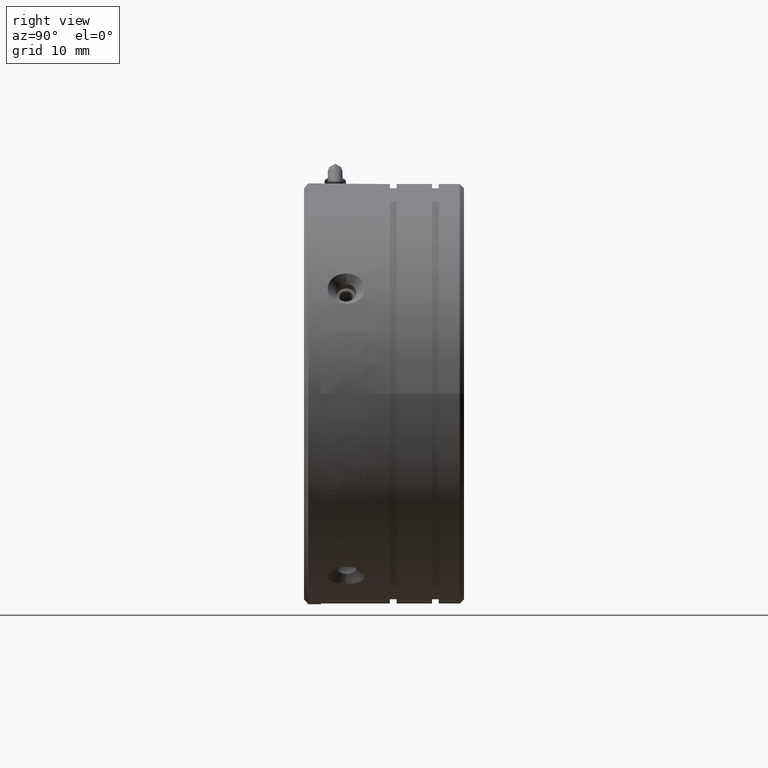
[diagram: clean part render]
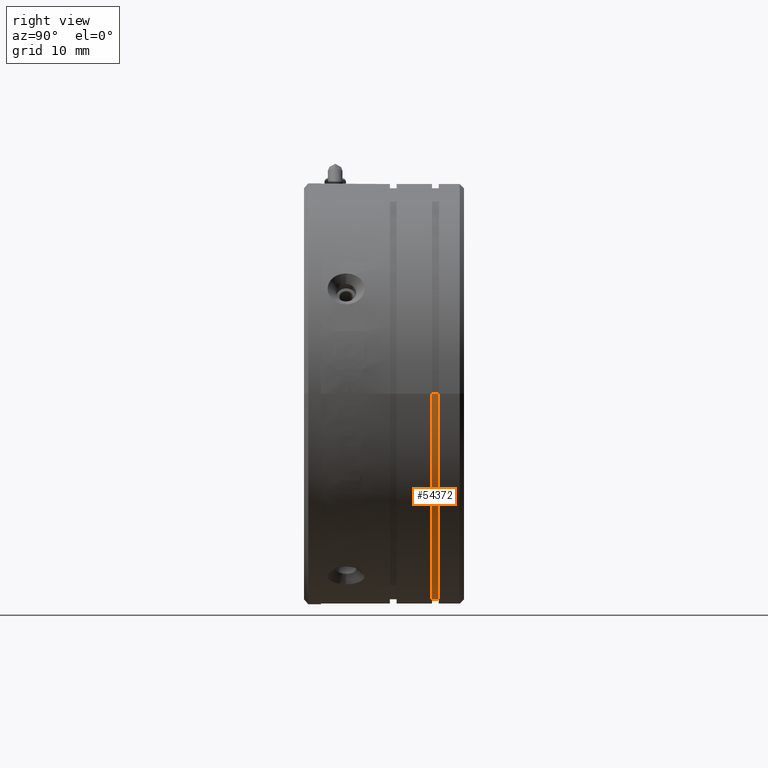
[diagram: same view with one face highlighted and labeled with its STEP entity id]
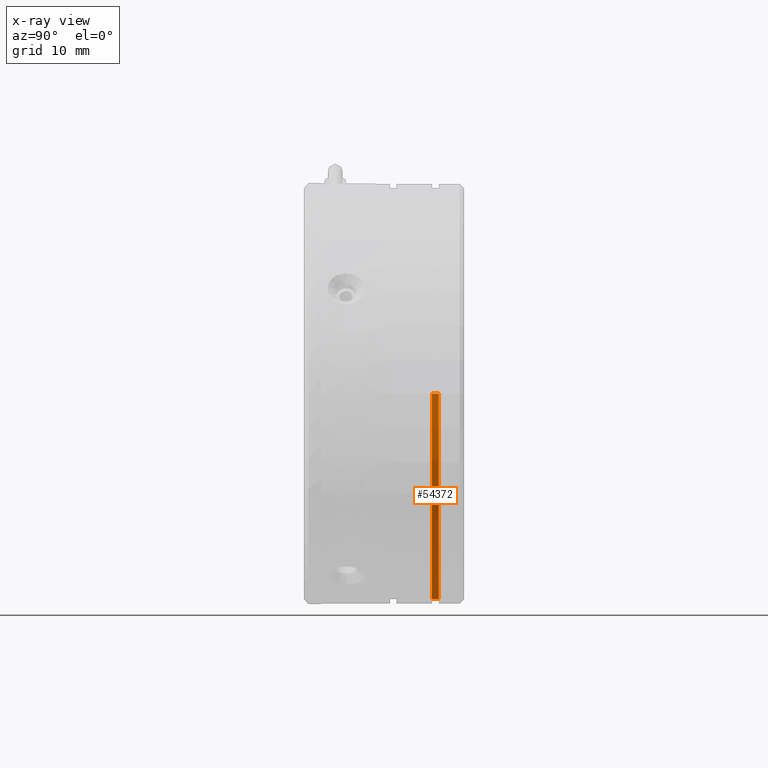
[diagram: x-ray of the same camera — body ghosted, the highlighted face saturated]
A machine part, right view. The second image highlights one B-rep face of the part: STEP entity #54372.
The next image is the same camera in x-ray: the body ghosted, the highlighted face saturated — about 0% of this face is hidden behind the body in this view.
In plain terms, the highlighted cylindrical surface (partial cylindrical patch) has radius 24.5 mm, axis along (0, 1, -0).
Its self-contained STEP definition (entity closure, byte-faithful):
#891 = VERTEX_POINT ( 'NONE', #60872 ) ;
#903 = DIRECTION ( 'NONE',  ( 0.0000000000000000000, 1.000000000000000000, -0.0000000000000000000 ) ) ;
#1219 = CARTESIAN_POINT ( 'NONE',  ( 20.47418136128692400, 15.36823414706071000, 3.361451086403000600E-015 ) ) ;
#2314 = EDGE_CURVE ( 'NONE', #36819, #891, #8760, .T. ) ;
#4302 = CARTESIAN_POINT ( 'NONE',  ( -4.025818638713078100, 16.16823414706071200, 3.557538378468061400E-016 ) ) ;
#6892 = ORIENTED_EDGE ( 'NONE', *, *, #42742, .F. ) ;
#8760 = CIRCLE ( 'NONE', #21732, 24.50000000000000000 ) ;
#9171 = DIRECTION ( 'NONE',  ( -1.000000000000000000, 0.0000000000000000000, -2.168404344971005700E-019 ) ) ;
#10589 = CARTESIAN_POINT ( 'NONE',  ( -4.025818638713078100, 15.96823414706070900, 3.557538378468061400E-016 ) ) ;
#12856 = AXIS2_PLACEMENT_3D ( 'NONE', #4302, #37912, #9171 ) ;
#13391 = EDGE_LOOP ( 'NONE', ( #6892, #14334, #22601, #26977 ) ) ;
#14334 = ORIENTED_EDGE ( 'NONE', *, *, #2314, .T. ) ;
#17118 = VECTOR ( 'NONE', #17650, 1000.000000000000000 ) ;
#17650 = DIRECTION ( 'NONE',  ( 0.0000000000000000000, 1.000000000000000000, -0.0000000000000000000 ) ) ;
#18507 = VECTOR ( 'NONE', #25753, 1000.000000000000000 ) ;
#20267 = CYLINDRICAL_SURFACE ( 'NONE', #44108, 24.50000000000000000 ) ;
#20899 = CARTESIAN_POINT ( 'NONE',  ( -28.52581863871307600, 15.96823414706070900, 3.504412472016271700E-016 ) ) ;
#21732 = AXIS2_PLACEMENT_3D ( 'NONE', #29026, #30349, #30213 ) ;
#22601 = ORIENTED_EDGE ( 'NONE', *, *, #45099, .T. ) ;
#25753 = DIRECTION ( 'NONE',  ( 0.0000000000000000000, 1.000000000000000000, -0.0000000000000000000 ) ) ;
#26977 = ORIENTED_EDGE ( 'NONE', *, *, #45311, .T. ) ;
#29026 = CARTESIAN_POINT ( 'NONE',  ( -4.025818638713078100, 15.36823414706071000, 3.557538378468061400E-016 ) ) ;
#29903 = DIRECTION ( 'NONE',  ( -1.000000000000000000, 0.0000000000000000000, -2.168404344971005700E-019 ) ) ;
#30213 = DIRECTION ( 'NONE',  ( -1.000000000000000000, 0.0000000000000000000, -2.168404344971005700E-019 ) ) ;
#30349 = DIRECTION ( 'NONE',  ( 0.0000000000000000000, 1.000000000000000000, -0.0000000000000000000 ) ) ;
#31951 = CARTESIAN_POINT ( 'NONE',  ( 20.47418136128692400, 15.96823414706070900, 3.361451086403000600E-015 ) ) ;
#32306 = CARTESIAN_POINT ( 'NONE',  ( -28.52581863871307600, 16.16823414706071200, 3.504412472016271700E-016 ) ) ;
#34331 = VERTEX_POINT ( 'NONE', #32306 ) ;
#36819 = VERTEX_POINT ( 'NONE', #1219 ) ;
#37912 = DIRECTION ( 'NONE',  ( -0.0000000000000000000, -1.000000000000000000, 0.0000000000000000000 ) ) ;
#40169 = CIRCLE ( 'NONE', #12856, 24.50000000000000000 ) ;
#42342 = CARTESIAN_POINT ( 'NONE',  ( 20.47418136128692400, 16.16823414706071200, 3.361451086403000600E-015 ) ) ;
#42623 = LINE ( 'NONE', #31951, #17118 ) ;
#42742 = EDGE_CURVE ( 'NONE', #36819, #52827, #42623, .T. ) ;
#44108 = AXIS2_PLACEMENT_3D ( 'NONE', #10589, #903, #29903 ) ;
#45099 = EDGE_CURVE ( 'NONE', #891, #34331, #56619, .T. ) ;
#45311 = EDGE_CURVE ( 'NONE', #34331, #52827, #40169, .T. ) ;
#50186 = FACE_OUTER_BOUND ( 'NONE', #13391, .T. ) ;
#52827 = VERTEX_POINT ( 'NONE', #42342 ) ;
#54372 = ADVANCED_FACE ( 'NONE', ( #50186 ), #20267, .T. ) ;
#56619 = LINE ( 'NONE', #20899, #18507 ) ;
#60872 = CARTESIAN_POINT ( 'NONE',  ( -28.52581863871307600, 15.36823414706071000, 3.504412472016271700E-016 ) ) ;